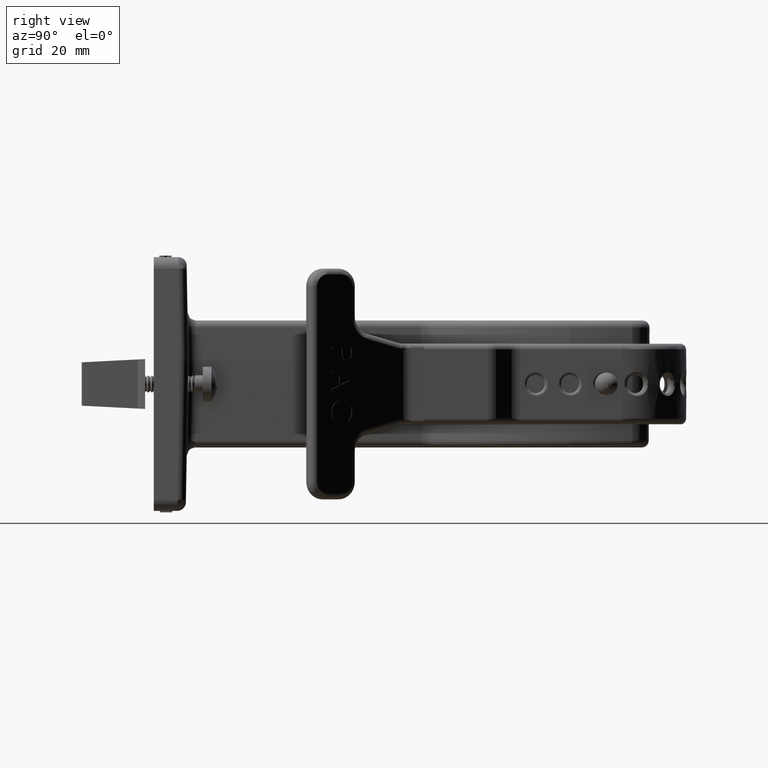
[diagram: clean part render]
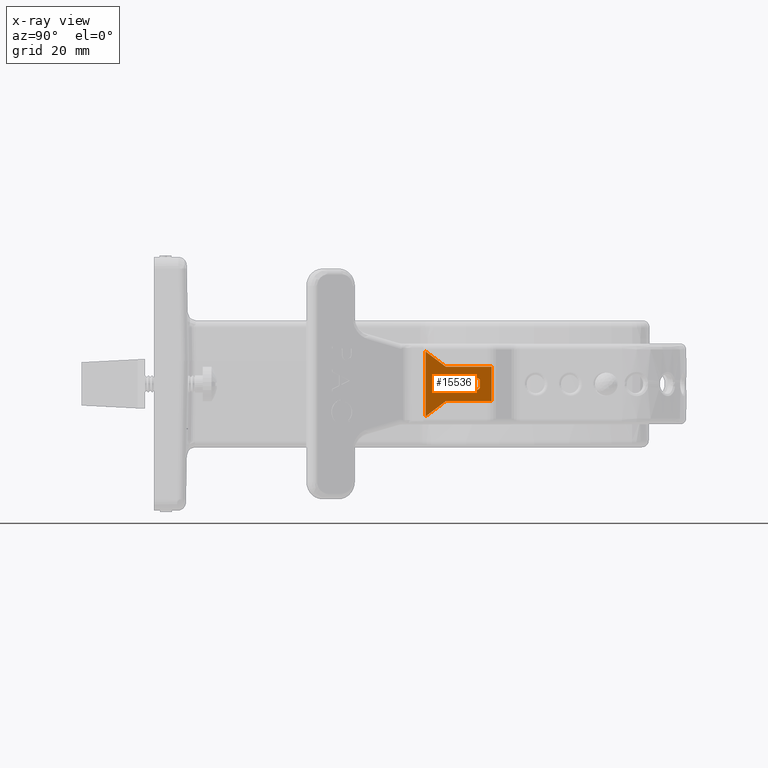
[diagram: x-ray — body ghosted, one internal face saturated and labeled with its STEP entity id]
A machine part, right view, then the same camera in x-ray: the body is ghosted and one INTERNAL B-rep face — a face not visible from any outside direction — is saturated and labeled: STEP entity #15536.
In plain terms, the highlighted planar face has unit normal (0.992, 0.1263, -0).
Its self-contained STEP definition (entity closure, byte-faithful):
#2286 = CARTESIAN_POINT ( 'NONE',  ( 1.179457545929012000, 3.158761849628032500, 0.1874999999999999700 ) ) ;
#2287 = CARTESIAN_POINT ( 'NONE',  ( 1.179457545929012000, 3.158761849628032500, -0.1875000000000000600 ) ) ;
#2289 = CARTESIAN_POINT ( 'NONE',  ( 1.242583330533298500, 2.662762721283945800, 0.1874999999999999700 ) ) ;
#2293 = CARTESIAN_POINT ( 'NONE',  ( 1.270200861297673600, 2.445763102633408300, 0.3515624999999999400 ) ) ;
#2298 = CARTESIAN_POINT ( 'NONE',  ( 1.242583330533298500, 2.662762721283945800, -0.1875000000000000600 ) ) ;
#2299 = CARTESIAN_POINT ( 'NONE',  ( 1.270200861297673600, 2.445763102633408300, -0.3515624999999999400 ) ) ;
#2300 = CARTESIAN_POINT ( 'NONE',  ( 1.195238992080083400, 3.034762067542011300, -0.03125000000000002800 ) ) ;
#2301 = CARTESIAN_POINT ( 'NONE',  ( 1.195238992080083400, 3.034762067542011300, 0.03124999999999997600 ) ) ;
#2302 = CARTESIAN_POINT ( 'NONE',  ( 1.199184353617851500, 3.003762122020506200, -0.06250000000000002800 ) ) ;
#2303 = CARTESIAN_POINT ( 'NONE',  ( 1.254419415146602200, 2.569762884719430000, -0.06250000000000004200 ) ) ;
#2304 = CARTESIAN_POINT ( 'NONE',  ( 1.258364776684369700, 2.538762939197925000, -0.03125000000000004200 ) ) ;
#2305 = CARTESIAN_POINT ( 'NONE',  ( 1.258364776684369700, 2.538762939197925000, 0.03124999999999996500 ) ) ;
#2306 = CARTESIAN_POINT ( 'NONE',  ( 1.254419415146602200, 2.569762884719430000, 0.06249999999999995800 ) ) ;
#2307 = CARTESIAN_POINT ( 'NONE',  ( 1.199184353617851700, 3.003762122020505700, 0.06249999999999996500 ) ) ;
#15536 = ADVANCED_FACE ( 'NONE', ( #24756, #24766 ), #26464, .T. ) ;
#16315 = VERTEX_POINT ( 'NONE', #2286 ) ;
#16317 = VERTEX_POINT ( 'NONE', #2287 ) ;
#16321 = VERTEX_POINT ( 'NONE', #2289 ) ;
#16329 = VERTEX_POINT ( 'NONE', #2293 ) ;
#16339 = VERTEX_POINT ( 'NONE', #2298 ) ;
#16341 = VERTEX_POINT ( 'NONE', #2299 ) ;
#16343 = VERTEX_POINT ( 'NONE', #2300 ) ;
#16345 = VERTEX_POINT ( 'NONE', #2301 ) ;
#16347 = VERTEX_POINT ( 'NONE', #2302 ) ;
#16348 = VERTEX_POINT ( 'NONE', #2303 ) ;
#16350 = VERTEX_POINT ( 'NONE', #2304 ) ;
#16352 = VERTEX_POINT ( 'NONE', #2305 ) ;
#16354 = VERTEX_POINT ( 'NONE', #2306 ) ;
#16356 = VERTEX_POINT ( 'NONE', #2307 ) ;
#19396 = ORIENTED_EDGE ( 'NONE', *, *, #49713, .F. ) ;
#19397 = ORIENTED_EDGE ( 'NONE', *, *, #49709, .T. ) ;
#19398 = ORIENTED_EDGE ( 'NONE', *, *, #49712, .F. ) ;
#19399 = ORIENTED_EDGE ( 'NONE', *, *, #49714, .T. ) ;
#19400 = ORIENTED_EDGE ( 'NONE', *, *, #49708, .F. ) ;
#19401 = ORIENTED_EDGE ( 'NONE', *, *, #49710, .T. ) ;
#19402 = ORIENTED_EDGE ( 'NONE', *, *, #49715, .F. ) ;
#19403 = ORIENTED_EDGE ( 'NONE', *, *, #49716, .T. ) ;
#19404 = ORIENTED_EDGE ( 'NONE', *, *, #49698, .T. ) ;
#19405 = ORIENTED_EDGE ( 'NONE', *, *, #49718, .T. ) ;
#19406 = ORIENTED_EDGE ( 'NONE', *, *, #49689, .T. ) ;
#19407 = ORIENTED_EDGE ( 'NONE', *, *, #49707, .T. ) ;
#19408 = ORIENTED_EDGE ( 'NONE', *, *, #49690, .T. ) ;
#19409 = ORIENTED_EDGE ( 'NONE', *, *, #49691, .T. ) ;
#23819 = AXIS2_PLACEMENT_3D ( 'NONE', #26465, #26470, #26471 ) ;
#24756 = FACE_BOUND ( 'NONE', #48804, .T. ) ;
#24766 = FACE_OUTER_BOUND ( 'NONE', #48805, .T. ) ;
#26464 = PLANE ( 'NONE',  #23819 ) ;
#26465 = CARTESIAN_POINT ( 'NONE',  ( 1.179457545929012000, 3.158761849628032500, 0.1874999999999999700 ) ) ;
#26470 = DIRECTION ( 'NONE',  ( 0.9919982566881723200, 0.1262515692085727200, -2.937092960995894400E-017 ) ) ;
#26471 = DIRECTION ( 'NONE',  ( 2.921691771010749700E-017, 3.071630540210249100E-018, 1.000000000000000000 ) ) ;
#30362 = AXIS2_PLACEMENT_3D ( 'NONE', #38269, #38270, #38271 ) ;
#30363 = AXIS2_PLACEMENT_3D ( 'NONE', #38272, #38273, #38274 ) ;
#30365 = AXIS2_PLACEMENT_3D ( 'NONE', #38280, #38281, #38282 ) ;
#30366 = AXIS2_PLACEMENT_3D ( 'NONE', #38286, #38288, #38289 ) ;
#36844 = LINE ( 'NONE', #38221, #36850 ) ;
#36846 = LINE ( 'NONE', #38220, #36851 ) ;
#36850 = VECTOR ( 'NONE', #38222, 39.37007874015748900 ) ;
#36851 = VECTOR ( 'NONE', #38224, 39.37007874015748100 ) ;
#36853 = LINE ( 'NONE', #38225, #36854 ) ;
#36854 = VECTOR ( 'NONE', #38226, 39.37007874015748900 ) ;
#36865 = LINE ( 'NONE', #38239, #36866 ) ;
#36866 = VECTOR ( 'NONE', #38240, 39.37007874015748900 ) ;
#36871 = LINE ( 'NONE', #38260, #36875 ) ;
#36875 = VECTOR ( 'NONE', #38266, 39.37007874015748900 ) ;
#36876 = VECTOR ( 'NONE', #38285, 39.37007874015748900 ) ;
#36877 = LINE ( 'NONE', #38267, #36878 ) ;
#36878 = VECTOR ( 'NONE', #38268, 39.37007874015748100 ) ;
#36881 = CIRCLE ( 'NONE', #30362, 0.03125000000000000000 ) ;
#36882 = LINE ( 'NONE', #38265, #36886 ) ;
#36883 = CIRCLE ( 'NONE', #30363, 0.03125000000000000000 ) ;
#36884 = LINE ( 'NONE', #38277, #36885 ) ;
#36885 = VECTOR ( 'NONE', #38278, 39.37007874015748900 ) ;
#36886 = VECTOR ( 'NONE', #38279, 39.37007874015748100 ) ;
#36887 = LINE ( 'NONE', #38284, #36876 ) ;
#36889 = CIRCLE ( 'NONE', #30365, 0.03125000000000000000 ) ;
#36891 = VECTOR ( 'NONE', #38294, 39.37007874015748100 ) ;
#36893 = CIRCLE ( 'NONE', #30366, 0.03125000000000000000 ) ;
#36894 = LINE ( 'NONE', #38287, #36891 ) ;
#38220 = CARTESIAN_POINT ( 'NONE',  ( 1.179457545929012000, 3.158761849628032500, -0.1875000000000000600 ) ) ;
#38221 = CARTESIAN_POINT ( 'NONE',  ( 1.242583330533298500, 2.662762721283945800, -0.1875000000000000600 ) ) ;
#38222 = DIRECTION ( 'NONE',  ( -0.1010012553668580600, 0.7935986053505368300, 0.6000000000000012000 ) ) ;
#38224 = DIRECTION ( 'NONE',  ( 4.358775504508268000E-017, -1.098445547619577200E-016, 1.000000000000000000 ) ) ;
#38225 = CARTESIAN_POINT ( 'NONE',  ( 1.179457545929012000, 3.158761849628032500, 0.1874999999999999700 ) ) ;
#38226 = DIRECTION ( 'NONE',  ( 0.1262515692085726900, -0.9919982566881722100, -6.417382177772293400E-019 ) ) ;
#38239 = CARTESIAN_POINT ( 'NONE',  ( 1.242583330533298500, 2.662762721283945800, 0.1874999999999999700 ) ) ;
#38240 = DIRECTION ( 'NONE',  ( 0.1010012553668580700, -0.7935986053505368300, 0.6000000000000012000 ) ) ;
#38260 = CARTESIAN_POINT ( 'NONE',  ( 1.179457545929012000, 3.158761849628032500, -0.1875000000000000600 ) ) ;
#38265 = CARTESIAN_POINT ( 'NONE',  ( 1.195238992080083400, 3.034762067542011300, -0.06250000000000002800 ) ) ;
#38266 = DIRECTION ( 'NONE',  ( -0.1262515692085726900, 0.9919982566881722100, 6.417382177772293400E-019 ) ) ;
#38267 = CARTESIAN_POINT ( 'NONE',  ( 1.258364776684369700, 2.538762939197925000, -0.06250000000000004200 ) ) ;
#38268 = DIRECTION ( 'NONE',  ( -2.921691771010749700E-017, -3.071630540210249100E-018, -1.000000000000000000 ) ) ;
#38269 = CARTESIAN_POINT ( 'NONE',  ( 1.199184353617851500, 3.003762122020506200, -0.03125000000000003500 ) ) ;
#38270 = DIRECTION ( 'NONE',  ( -0.9919982566881723200, -0.1262515692085727200, 2.937115097740507700E-017 ) ) ;
#38271 = DIRECTION ( 'NONE',  ( 0.0000000000000000000, 0.0000000000000000000, 1.000000000000000000 ) ) ;
#38272 = CARTESIAN_POINT ( 'NONE',  ( 1.254419415146602200, 2.569762884719430000, 0.03124999999999996500 ) ) ;
#38273 = DIRECTION ( 'NONE',  ( -0.9919982566881723200, -0.1262515692085727200, 2.937115097740507700E-017 ) ) ;
#38274 = DIRECTION ( 'NONE',  ( 0.0000000000000000000, 0.0000000000000000000, 1.000000000000000000 ) ) ;
#38277 = CARTESIAN_POINT ( 'NONE',  ( 1.195238992080083400, 3.034762067542011300, -0.06250000000000002800 ) ) ;
#38278 = DIRECTION ( 'NONE',  ( -0.1262515692085726900, 0.9919982566881722100, 1.771578817817886800E-017 ) ) ;
#38279 = DIRECTION ( 'NONE',  ( 6.370692731404792200E-017, -2.679272141849928500E-016, 1.000000000000000000 ) ) ;
#38280 = CARTESIAN_POINT ( 'NONE',  ( 1.254419415146602200, 2.569762884719430000, -0.03125000000000004200 ) ) ;
#38281 = DIRECTION ( 'NONE',  ( -0.9919982566881723200, -0.1262515692085727200, 2.937115097740507700E-017 ) ) ;
#38282 = DIRECTION ( 'NONE',  ( 0.0000000000000000000, 0.0000000000000000000, 1.000000000000000000 ) ) ;
#38284 = CARTESIAN_POINT ( 'NONE',  ( 1.195238992080083400, 3.034762067542011300, 0.06249999999999996500 ) ) ;
#38285 = DIRECTION ( 'NONE',  ( 0.1262515692085726900, -0.9919982566881722100, -1.771578817817886800E-017 ) ) ;
#38286 = CARTESIAN_POINT ( 'NONE',  ( 1.199184353617851700, 3.003762122020505700, 0.03124999999999996500 ) ) ;
#38287 = CARTESIAN_POINT ( 'NONE',  ( 1.270200861297673600, 2.445763102633408300, 0.1874999999999999700 ) ) ;
#38288 = DIRECTION ( 'NONE',  ( -0.9919982566881723200, -0.1262515692085727200, 2.937115097740507700E-017 ) ) ;
#38289 = DIRECTION ( 'NONE',  ( 0.0000000000000000000, 0.0000000000000000000, 1.000000000000000000 ) ) ;
#38294 = DIRECTION ( 'NONE',  ( -2.921691771010749700E-017, -3.071630540210249100E-018, -1.000000000000000000 ) ) ;
#48804 = EDGE_LOOP ( 'NONE', ( #19396, #19397, #19398, #19399, #19400, #19401, #19402, #19403 ) ) ;
#48805 = EDGE_LOOP ( 'NONE', ( #19404, #19405, #19406, #19407, #19408, #19409 ) ) ;
#49689 = EDGE_CURVE ( 'NONE', #16341, #16339, #36844, .T. ) ;
#49690 = EDGE_CURVE ( 'NONE', #16317, #16315, #36846, .T. ) ;
#49691 = EDGE_CURVE ( 'NONE', #16315, #16321, #36853, .T. ) ;
#49698 = EDGE_CURVE ( 'NONE', #16321, #16329, #36865, .T. ) ;
#49707 = EDGE_CURVE ( 'NONE', #16339, #16317, #36871, .T. ) ;
#49708 = EDGE_CURVE ( 'NONE', #16352, #16350, #36877, .T. ) ;
#49709 = EDGE_CURVE ( 'NONE', #16343, #16347, #36881, .T. ) ;
#49710 = EDGE_CURVE ( 'NONE', #16352, #16354, #36883, .T. ) ;
#49712 = EDGE_CURVE ( 'NONE', #16348, #16347, #36884, .T. ) ;
#49713 = EDGE_CURVE ( 'NONE', #16343, #16345, #36882, .T. ) ;
#49714 = EDGE_CURVE ( 'NONE', #16348, #16350, #36889, .T. ) ;
#49715 = EDGE_CURVE ( 'NONE', #16356, #16354, #36887, .T. ) ;
#49716 = EDGE_CURVE ( 'NONE', #16356, #16345, #36893, .T. ) ;
#49718 = EDGE_CURVE ( 'NONE', #16329, #16341, #36894, .T. ) ;